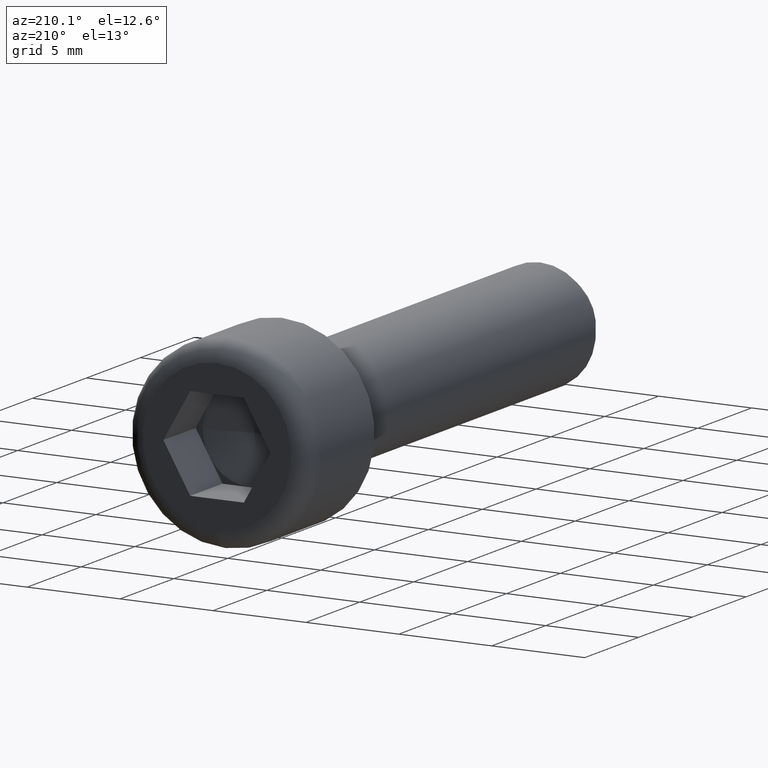
[diagram: clean part render]
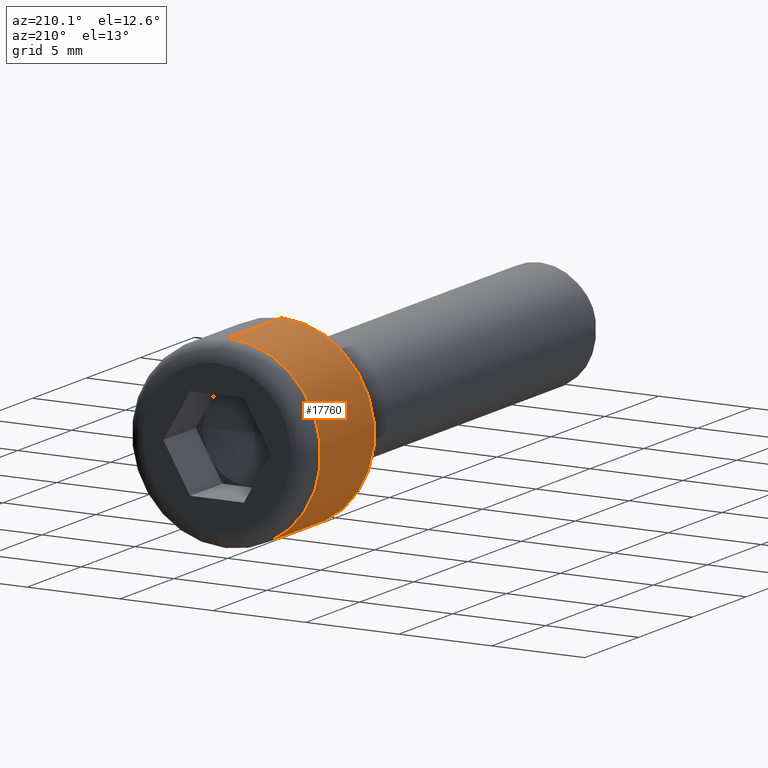
[diagram: same view with one face highlighted and labeled with its STEP entity id]
A machine part, auxiliary view. The second image highlights one B-rep face of the part: STEP entity #17760.
In plain terms, the highlighted cylindrical surface (partial cylindrical patch) has radius 5 mm, axis along (-0, -1, -0).
Its self-contained STEP definition (entity closure, byte-faithful):
#61 = CARTESIAN_POINT ( 'NONE',  ( 0.000000000000000000, 5.000000000000000000, -5.000000000000000000 ) ) ;
#255 = DIRECTION ( 'NONE',  ( -0.000000000000000000, -1.000000000000000000, -0.000000000000000000 ) ) ;
#603 = CIRCLE ( 'NONE', #13831, 5.000000000000000000 ) ;
#968 = VERTEX_POINT ( 'NONE', #3137 ) ;
#1182 = ORIENTED_EDGE ( 'NONE', *, *, #17480, .F. ) ;
#1533 = LINE ( 'NONE', #11781, #10110 ) ;
#2541 = DIRECTION ( 'NONE',  ( -0.000000000000000000, -1.000000000000000000, -0.000000000000000000 ) ) ;
#3137 = CARTESIAN_POINT ( 'NONE',  ( 6.123233995736766282E-16, 5.000000000000000000, 5.000000000000000000 ) ) ;
#5060 = LINE ( 'NONE', #13962, #14323 ) ;
#5402 = VERTEX_POINT ( 'NONE', #61 ) ;
#6273 = CIRCLE ( 'NONE', #8019, 5.000000000000000000 ) ;
#6861 = AXIS2_PLACEMENT_3D ( 'NONE', #10874, #15002, #13484 ) ;
#7595 = ORIENTED_EDGE ( 'NONE', *, *, #7745, .T. ) ;
#7745 = EDGE_CURVE ( 'NONE', #968, #5402, #6273, .T. ) ;
#7884 = DIRECTION ( 'NONE',  ( 0.000000000000000000, 1.000000000000000000, 0.000000000000000000 ) ) ;
#8019 = AXIS2_PLACEMENT_3D ( 'NONE', #8897, #255, #9026 ) ;
#8540 = CARTESIAN_POINT ( 'NONE',  ( 6.123233995736766282E-16, 0.000000000000000000, 5.000000000000000000 ) ) ;
#8897 = CARTESIAN_POINT ( 'NONE',  ( 0.000000000000000000, 5.000000000000000000, 0.000000000000000000 ) ) ;
#9026 = DIRECTION ( 'NONE',  ( 0.000000000000000000, 0.000000000000000000, 1.000000000000000000 ) ) ;
#10056 = FACE_OUTER_BOUND ( 'NONE', #18573, .T. ) ;
#10110 = VECTOR ( 'NONE', #16315, 1000.000000000000000 ) ;
#10715 = CARTESIAN_POINT ( 'NONE',  ( 0.000000000000000000, 0.000000000000000000, -5.000000000000000000 ) ) ;
#10874 = CARTESIAN_POINT ( 'NONE',  ( 0.000000000000000000, 6.000000000000000000, 0.000000000000000000 ) ) ;
#11338 = ORIENTED_EDGE ( 'NONE', *, *, #13062, .T. ) ;
#11781 = CARTESIAN_POINT ( 'NONE',  ( 0.000000000000000000, 6.000000000000000000, -5.000000000000000000 ) ) ;
#13062 = EDGE_CURVE ( 'NONE', #5402, #14894, #1533, .T. ) ;
#13484 = DIRECTION ( 'NONE',  ( 0.000000000000000000, 0.000000000000000000, -1.000000000000000000 ) ) ;
#13831 = AXIS2_PLACEMENT_3D ( 'NONE', #16645, #7884, #16409 ) ;
#13962 = CARTESIAN_POINT ( 'NONE',  ( 6.123233995736766282E-16, 6.000000000000000000, 5.000000000000000000 ) ) ;
#14323 = VECTOR ( 'NONE', #2541, 1000.000000000000000 ) ;
#14865 = EDGE_CURVE ( 'NONE', #14894, #16072, #603, .T. ) ;
#14894 = VERTEX_POINT ( 'NONE', #10715 ) ;
#15002 = DIRECTION ( 'NONE',  ( -0.000000000000000000, -1.000000000000000000, -0.000000000000000000 ) ) ;
#16072 = VERTEX_POINT ( 'NONE', #8540 ) ;
#16315 = DIRECTION ( 'NONE',  ( -0.000000000000000000, -1.000000000000000000, -0.000000000000000000 ) ) ;
#16409 = DIRECTION ( 'NONE',  ( 0.000000000000000000, 0.000000000000000000, 1.000000000000000000 ) ) ;
#16593 = ORIENTED_EDGE ( 'NONE', *, *, #14865, .T. ) ;
#16645 = CARTESIAN_POINT ( 'NONE',  ( 0.000000000000000000, 0.000000000000000000, 0.000000000000000000 ) ) ;
#17480 = EDGE_CURVE ( 'NONE', #968, #16072, #5060, .T. ) ;
#17760 = ADVANCED_FACE ( 'NONE', ( #10056 ), #18578, .T. ) ;
#18573 = EDGE_LOOP ( 'NONE', ( #1182, #7595, #11338, #16593 ) ) ;
#18578 = CYLINDRICAL_SURFACE ( 'NONE', #6861, 5.000000000000000000 ) ;